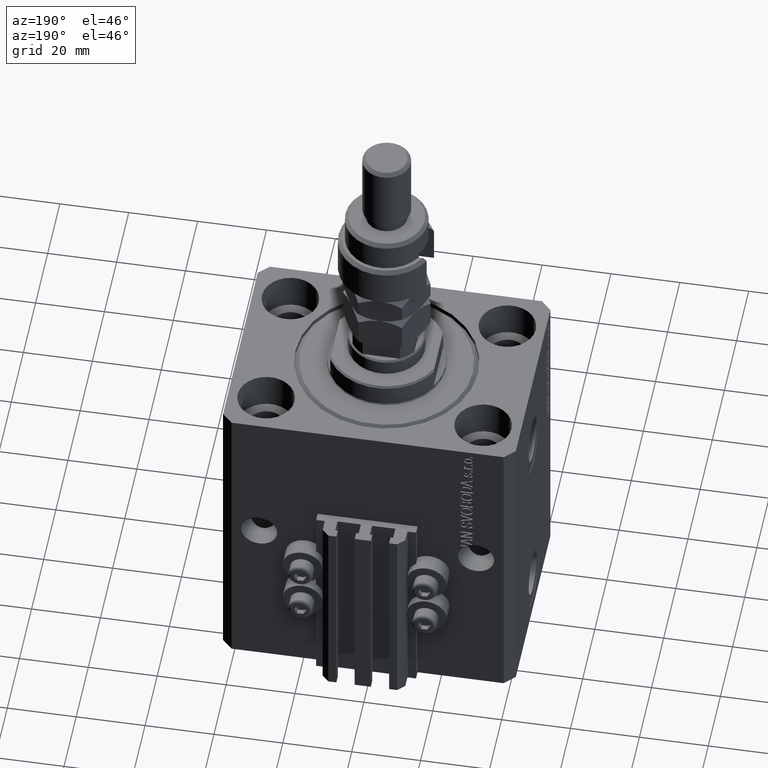
[diagram: clean part render]
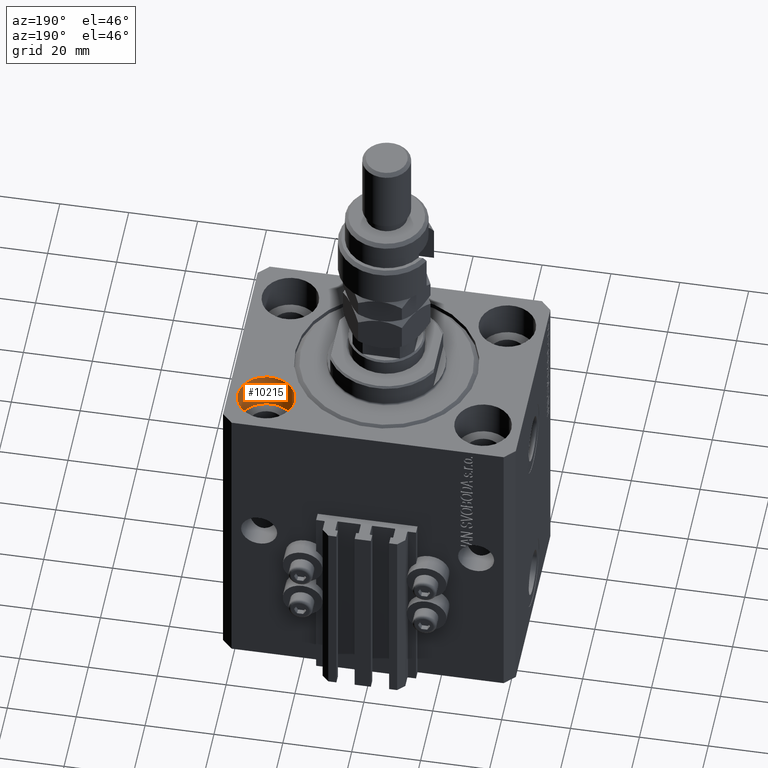
[diagram: same view with one face highlighted and labeled with its STEP entity id]
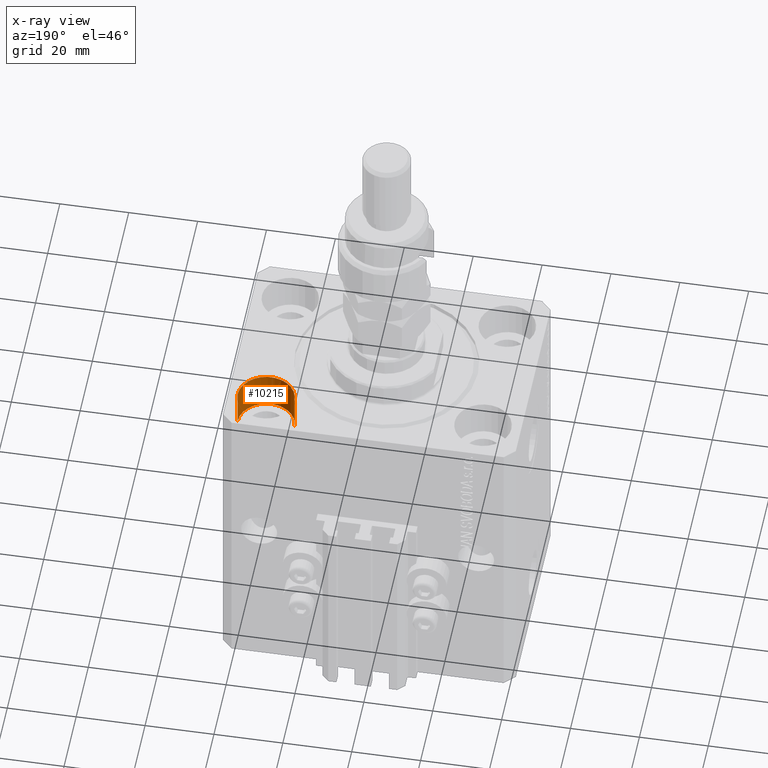
[diagram: x-ray of the same camera — body ghosted, the highlighted face saturated]
A machine part, auxiliary view. The second image highlights one B-rep face of the part: STEP entity #10215.
The next image is the same camera in x-ray: the body ghosted, the highlighted face saturated — about 0% of this face is hidden behind the body in this view.
In plain terms, the highlighted cylindrical surface (edge-blend (fillet) strip) has radius 8.25 mm, axis along (0, 0, 1).
Its self-contained STEP definition (entity closure, byte-faithful):
#165 = FACE_OUTER_BOUND ( 'NONE', #5034, .T. ) ;
#1622 = VERTEX_POINT ( 'NONE', #47925 ) ;
#4531 = CARTESIAN_POINT ( 'NONE',  ( 23.25000000000000355, 20.00000000000001066, 0.000000000000000000 ) ) ;
#4659 = CARTESIAN_POINT ( 'NONE',  ( 23.25000000000000355, 20.00000000000001066, -11.00000000000000000 ) ) ;
#5034 = EDGE_LOOP ( 'NONE', ( #23491, #47981, #19449, #16865 ) ) ;
#6683 = VECTOR ( 'NONE', #45922, 1000.000000000000000 ) ;
#8143 = CARTESIAN_POINT ( 'NONE',  ( 23.25000000000000355, 20.00000000000001066, -11.00000000000000000 ) ) ;
#9202 = DIRECTION ( 'NONE',  ( 1.000000000000000000, 0.000000000000000000, 0.000000000000000000 ) ) ;
#10215 = ADVANCED_FACE ( 'NONE', ( #165 ), #27399, .F. ) ;
#12175 = DIRECTION ( 'NONE',  ( 1.000000000000000000, 0.000000000000000000, 0.000000000000000000 ) ) ;
#14802 = EDGE_CURVE ( 'NONE', #47994, #1622, #40807, .T. ) ;
#16370 = DIRECTION ( 'NONE',  ( -0.000000000000000000, -0.000000000000000000, 1.000000000000000000 ) ) ;
#16865 = ORIENTED_EDGE ( 'NONE', *, *, #34305, .F. ) ;
#19449 = ORIENTED_EDGE ( 'NONE', *, *, #28326, .T. ) ;
#19960 = CARTESIAN_POINT ( 'NONE',  ( 39.74999999999999289, 20.00000000000001066, 0.000000000000000000 ) ) ;
#20155 = DIRECTION ( 'NONE',  ( 0.000000000000000000, 0.000000000000000000, 1.000000000000000000 ) ) ;
#22725 = CARTESIAN_POINT ( 'NONE',  ( 39.74999999999999289, 20.00000000000001066, -11.00000000000000000 ) ) ;
#23491 = ORIENTED_EDGE ( 'NONE', *, *, #14802, .F. ) ;
#24276 = LINE ( 'NONE', #4659, #46124 ) ;
#25189 = AXIS2_PLACEMENT_3D ( 'NONE', #47591, #39937, #12175 ) ;
#27281 = LINE ( 'NONE', #22725, #6683 ) ;
#27399 = CYLINDRICAL_SURFACE ( 'NONE', #27696, 8.249999999999992895 ) ;
#27696 = AXIS2_PLACEMENT_3D ( 'NONE', #46312, #42988, #38396 ) ;
#28326 = EDGE_CURVE ( 'NONE', #29192, #34003, #47196, .T. ) ;
#29192 = VERTEX_POINT ( 'NONE', #4531 ) ;
#32124 = CARTESIAN_POINT ( 'NONE',  ( 31.50000000000000000, 20.00000000000001066, -11.00000000000000000 ) ) ;
#34003 = VERTEX_POINT ( 'NONE', #19960 ) ;
#34305 = EDGE_CURVE ( 'NONE', #1622, #34003, #27281, .T. ) ;
#38396 = DIRECTION ( 'NONE',  ( 1.000000000000000000, 0.000000000000000000, 0.000000000000000000 ) ) ;
#39937 = DIRECTION ( 'NONE',  ( 0.000000000000000000, 0.000000000000000000, 1.000000000000000000 ) ) ;
#40807 = CIRCLE ( 'NONE', #48949, 8.249999999999992895 ) ;
#42988 = DIRECTION ( 'NONE',  ( -0.000000000000000000, -0.000000000000000000, 1.000000000000000000 ) ) ;
#45922 = DIRECTION ( 'NONE',  ( -0.000000000000000000, -0.000000000000000000, 1.000000000000000000 ) ) ;
#46124 = VECTOR ( 'NONE', #16370, 1000.000000000000000 ) ;
#46312 = CARTESIAN_POINT ( 'NONE',  ( 31.50000000000000000, 20.00000000000001066, -11.00000000000000000 ) ) ;
#47196 = CIRCLE ( 'NONE', #25189, 8.249999999999992895 ) ;
#47591 = CARTESIAN_POINT ( 'NONE',  ( 31.50000000000000000, 20.00000000000001066, 0.000000000000000000 ) ) ;
#47925 = CARTESIAN_POINT ( 'NONE',  ( 39.74999999999999289, 20.00000000000001066, -11.00000000000000000 ) ) ;
#47981 = ORIENTED_EDGE ( 'NONE', *, *, #49492, .T. ) ;
#47994 = VERTEX_POINT ( 'NONE', #8143 ) ;
#48949 = AXIS2_PLACEMENT_3D ( 'NONE', #32124, #20155, #9202 ) ;
#49492 = EDGE_CURVE ( 'NONE', #47994, #29192, #24276, .T. ) ;